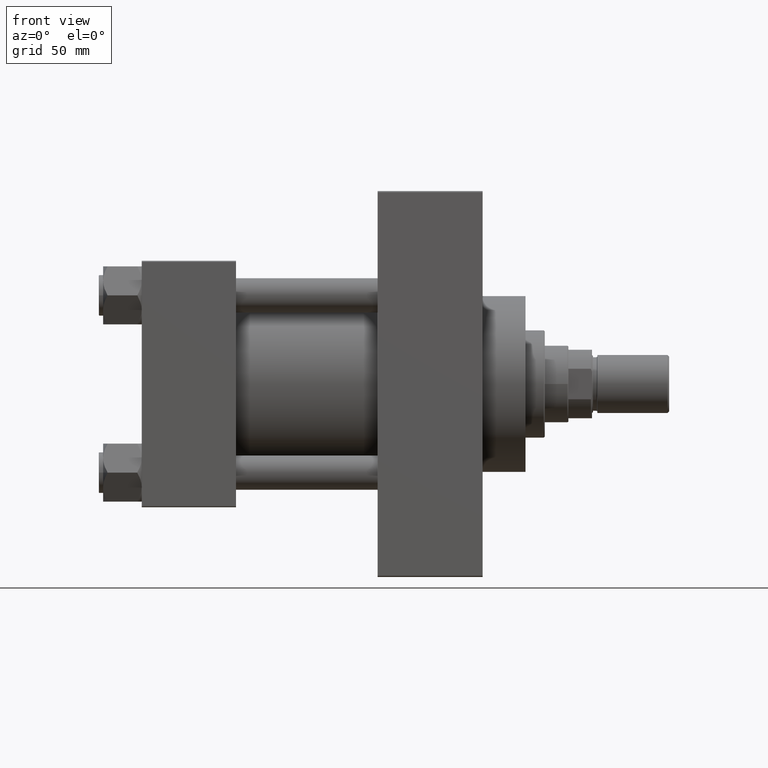
[diagram: clean part render]
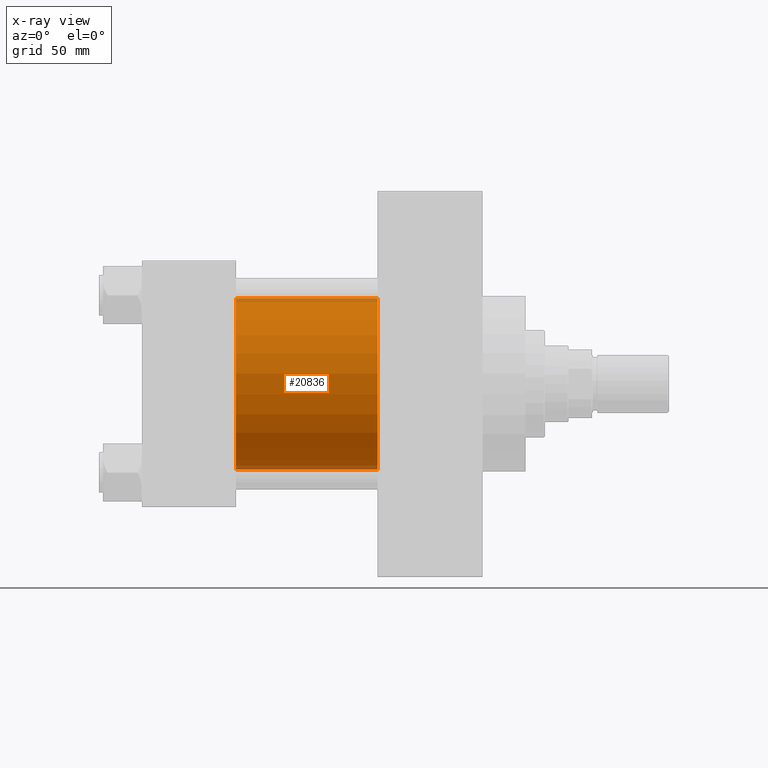
[diagram: x-ray — body ghosted, one internal face saturated and labeled with its STEP entity id]
A machine part, front view, then the same camera in x-ray: the body is ghosted and one INTERNAL B-rep face — a face not visible from any outside direction — is saturated and labeled: STEP entity #20836.
In plain terms, the highlighted cylindrical surface (partial cylindrical patch) has radius 40 mm, axis along (-1, -0, -0).
Its self-contained STEP definition (entity closure, byte-faithful):
#1384 = CARTESIAN_POINT ( 'NONE',  ( 110.0000000000000000, -2.602085213965210642E-15, 0.000000000000000000 ) ) ;
#1925 = FACE_OUTER_BOUND ( 'NONE', #30750, .T. ) ;
#4152 = VECTOR ( 'NONE', #46665, 1000.000000000000000 ) ;
#4374 = DIRECTION ( 'NONE',  ( 1.000000000000000000, 0.000000000000000000, 0.000000000000000000 ) ) ;
#6676 = ORIENTED_EDGE ( 'NONE', *, *, #39111, .F. ) ;
#9250 = CARTESIAN_POINT ( 'NONE',  ( 110.0000000000000000, -2.602085213965210642E-15, 0.000000000000000000 ) ) ;
#11796 = ORIENTED_EDGE ( 'NONE', *, *, #36656, .T. ) ;
#12298 = CARTESIAN_POINT ( 'NONE',  ( 110.0000000000000000, 2.296501982624201990E-15, -40.00000000000000000 ) ) ;
#13198 = VERTEX_POINT ( 'NONE', #12298 ) ;
#13362 = CYLINDRICAL_SURFACE ( 'NONE', #22096, 40.00000000000000000 ) ;
#13798 = CARTESIAN_POINT ( 'NONE',  ( 110.0000000000000000, 2.296501982624201990E-15, -40.00000000000000000 ) ) ;
#14674 = AXIS2_PLACEMENT_3D ( 'NONE', #42099, #4374, #41617 ) ;
#15380 = ORIENTED_EDGE ( 'NONE', *, *, #18412, .T. ) ;
#16564 = DIRECTION ( 'NONE',  ( -1.000000000000000000, -0.000000000000000000, -0.000000000000000000 ) ) ;
#17013 = CIRCLE ( 'NONE', #14674, 40.00000000000000000 ) ;
#17031 = CARTESIAN_POINT ( 'NONE',  ( 110.0000000000000000, -2.602085213965210642E-15, 40.00000000000000000 ) ) ;
#17579 = CARTESIAN_POINT ( 'NONE',  ( 44.00000000000000000, -2.602085213965210642E-15, 40.00000000000000000 ) ) ;
#18412 = EDGE_CURVE ( 'NONE', #13198, #18606, #28669, .T. ) ;
#18606 = VERTEX_POINT ( 'NONE', #38118 ) ;
#20836 = ADVANCED_FACE ( 'NONE', ( #1925 ), #13362, .F. ) ;
#21129 = DIRECTION ( 'NONE',  ( -1.000000000000000000, -0.000000000000000000, -0.000000000000000000 ) ) ;
#22096 = AXIS2_PLACEMENT_3D ( 'NONE', #9250, #21129, #31633 ) ;
#23942 = ORIENTED_EDGE ( 'NONE', *, *, #37171, .F. ) ;
#26466 = DIRECTION ( 'NONE',  ( 0.000000000000000000, 0.000000000000000000, -1.000000000000000000 ) ) ;
#27199 = DIRECTION ( 'NONE',  ( 1.000000000000000000, 0.000000000000000000, 0.000000000000000000 ) ) ;
#28669 = LINE ( 'NONE', #13798, #4152 ) ;
#30290 = AXIS2_PLACEMENT_3D ( 'NONE', #1384, #27199, #26466 ) ;
#30326 = CIRCLE ( 'NONE', #30290, 40.00000000000000000 ) ;
#30750 = EDGE_LOOP ( 'NONE', ( #11796, #15380, #6676, #23942 ) ) ;
#31633 = DIRECTION ( 'NONE',  ( 0.000000000000000000, 0.000000000000000000, 1.000000000000000000 ) ) ;
#35370 = VERTEX_POINT ( 'NONE', #36519 ) ;
#35558 = LINE ( 'NONE', #17031, #36503 ) ;
#36503 = VECTOR ( 'NONE', #16564, 1000.000000000000000 ) ;
#36519 = CARTESIAN_POINT ( 'NONE',  ( 110.0000000000000000, -2.602085213965210642E-15, 40.00000000000000000 ) ) ;
#36656 = EDGE_CURVE ( 'NONE', #35370, #13198, #30326, .T. ) ;
#37171 = EDGE_CURVE ( 'NONE', #35370, #37928, #35558, .T. ) ;
#37928 = VERTEX_POINT ( 'NONE', #17579 ) ;
#38118 = CARTESIAN_POINT ( 'NONE',  ( 44.00000000000000000, 2.296501982624201990E-15, -40.00000000000000000 ) ) ;
#39111 = EDGE_CURVE ( 'NONE', #37928, #18606, #17013, .T. ) ;
#41617 = DIRECTION ( 'NONE',  ( 0.000000000000000000, 0.000000000000000000, -1.000000000000000000 ) ) ;
#42099 = CARTESIAN_POINT ( 'NONE',  ( 44.00000000000000000, -2.602085213965210642E-15, 0.000000000000000000 ) ) ;
#46665 = DIRECTION ( 'NONE',  ( -1.000000000000000000, -0.000000000000000000, -0.000000000000000000 ) ) ;